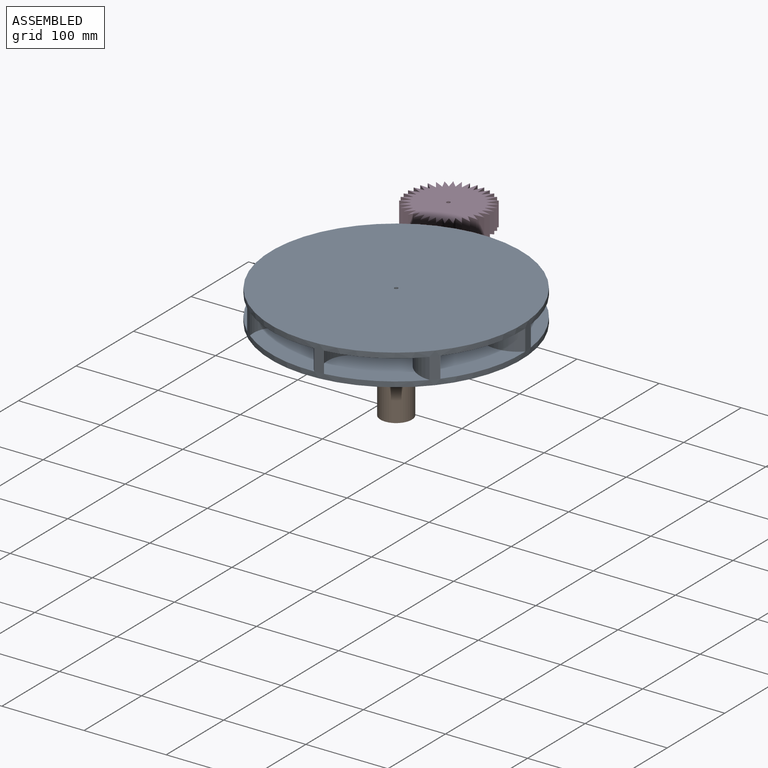
[diagram: assembled view]
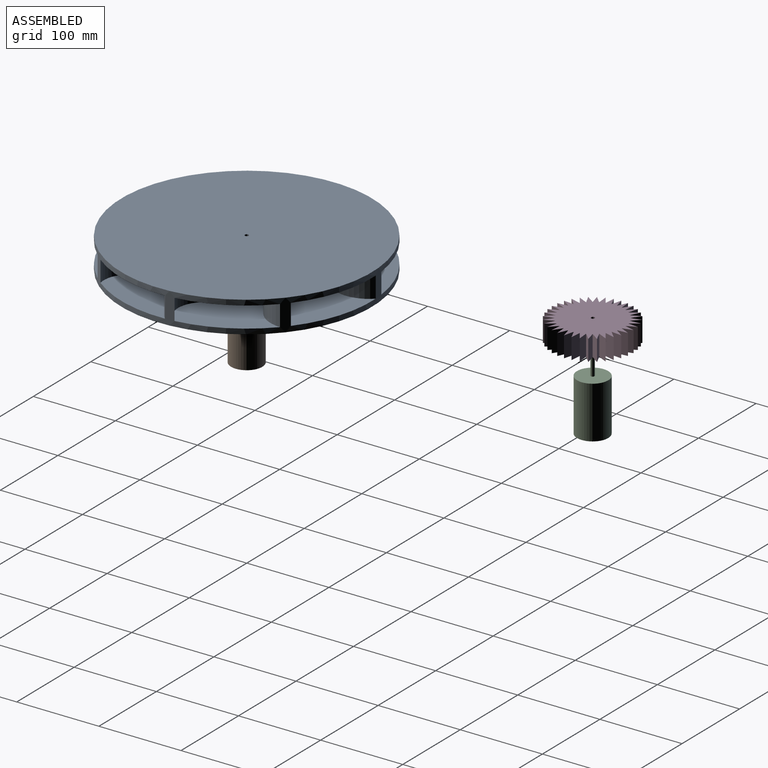
[diagram: assembled view, second angle]
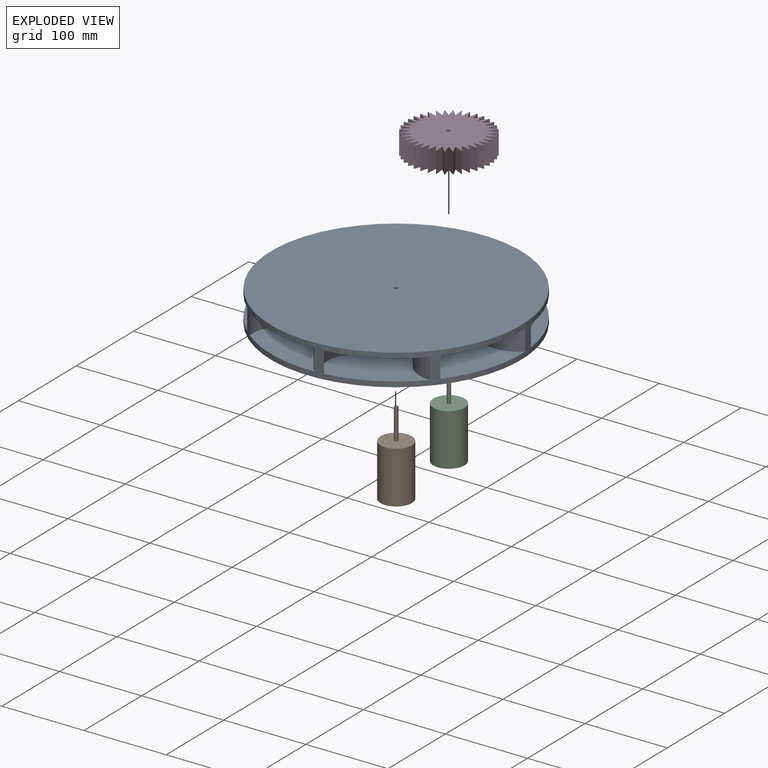
[diagram: exploded view]
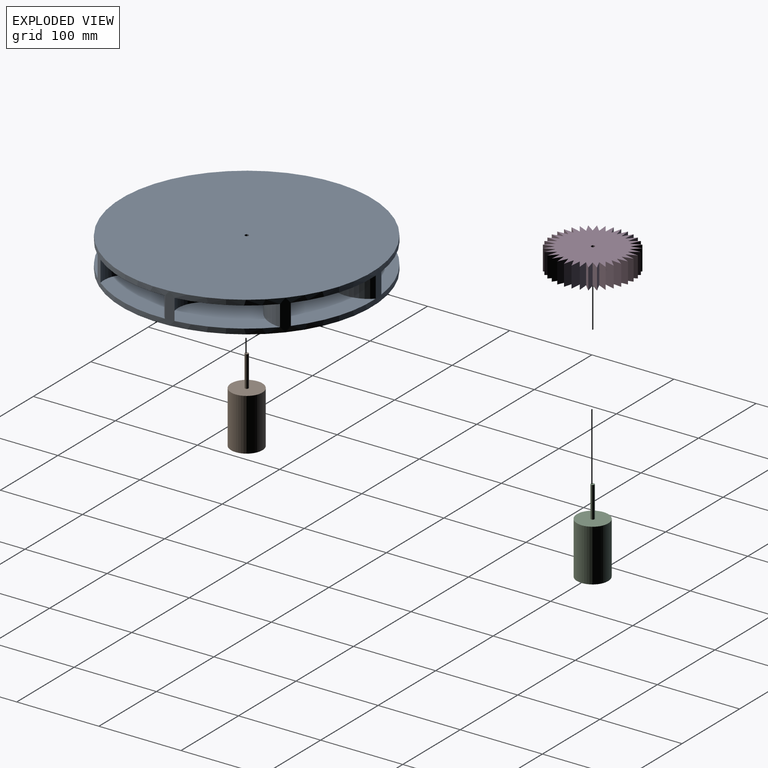
[diagram: exploded view, second angle]
ASSEMBLY  parts=4 mates=2
PART A: 85 faces, bbox 304.8x63.5x304.8 mm
  f0: plane 130.83x98.42mm, normal (0,-1,0), area 7573.2mm2, adj f7,f45,f46,f47,f48,f49
  f1: plane 130.83x110.76mm, normal (0,-1,0), area 7573.2mm2, adj f7,f40,f41,f42,f43,f44
  f2: plane 130.83x98.42mm, normal (0,-1,0), area 7573.2mm2, adj f7,f35,f36,f37,f38,f39
  f3: plane 130.83x110.76mm, normal (0,-1,0), area 7573.2mm2, adj f7,f30,f31,f32,f33,f34
  f4: plane 130.83x98.42mm, normal (0,-1,0), area 7573.2mm2, adj f7,f25,f26,f27,f28,f29
  f5: plane 130.83x110.76mm, normal (0,-1,0), area 7573.2mm2, adj f7,f20,f21,f22,f23,f24
  f6: plane 130.83x98.42mm, normal (0,-1,0), area 7573.2mm2, adj f7,f15,f16,f17,f18,f19
  f7: cylinder r=152.4mm len=304.8mm, axis (0,1,0), area 14432.5mm2, adj f0,f1,f2,f3,f4,f5,f6,f8
  f8: plane 130.83x110.76mm, normal (0,-1,0), area 7573.2mm2, adj f7,f10,f11,f12,f13,f14
  f9: plane 304.8x304.8mm, normal (0,1,0), area 71998.1mm2, adj f7,f50,f51,f52,f53,f54,f55,f56
  f10: cylinder r=32.42mm len=51.32mm, axis (0,1,0), area 1504.1mm2, adj f7,f8,f11,f75
  f11: plane 76.2x25.4mm, normal (1,0,0), area 1935.5mm2, adj f8,f10,f12,f75
  f12: cylinder r=25.4mm len=25.4mm, axis (0,1,0), area 220.5mm2, adj f8,f11,f13,f75
  f13: plane 53.88x53.88mm, normal (-0.71,0,-0.71), area 1935.5mm2, adj f8,f12,f14,f75
  f14: cylinder r=40.23mm len=36.29mm, axis (0,1,0), area 1413.6mm2, adj f7,f8,f13,f75
  f15: cylinder r=32.42mm len=36.55mm, axis (0,1,0), area 1504.1mm2, adj f6,f7,f16,f76
  f16: plane 53.88x53.88mm, normal (0.71,0,0.71), area 1935.5mm2, adj f6,f15,f17,f76
  f17: cylinder r=25.4mm len=25.4mm, axis (0,1,0), area 220.5mm2, adj f6,f16,f18,f76
  f18: plane 76.2x25.4mm, normal (0,0,-1), area 1935.5mm2, adj f6,f17,f19,f76
  f19: cylinder r=40.23mm len=51.32mm, axis (0,1,0), area 1413.6mm2, adj f6,f7,f18,f76
  f20: cylinder r=32.42mm len=51.32mm, axis (0,1,0), area 1504.1mm2, adj f5,f7,f21,f77
  f21: plane 76.2x25.4mm, normal (0,0,1), area 1935.5mm2, adj f5,f20,f22,f77
  f22: cylinder r=25.4mm len=25.4mm, axis (0,1,0), area 220.5mm2, adj f5,f21,f23,f77
  f23: plane 53.88x53.88mm, normal (0.71,0,-0.71), area 1935.5mm2, adj f5,f22,f24,f77
  f24: cylinder r=40.23mm len=36.29mm, axis (0,1,0), area 1413.6mm2, adj f5,f7,f23,f77
  f25: cylinder r=32.42mm len=36.55mm, axis (0,1,0), area 1504.1mm2, adj f4,f7,f26,f78
  f26: plane 53.88x53.88mm, normal (-0.71,0,0.71), area 1935.5mm2, adj f4,f25,f27,f78
  f27: cylinder r=25.4mm len=25.4mm, axis (0,1,0), area 220.5mm2, adj f4,f26,f28,f78
  f28: plane 76.2x25.4mm, normal (1,0,0), area 1935.5mm2, adj f4,f27,f29,f78
  f29: cylinder r=40.23mm len=51.32mm, axis (0,1,0), area 1413.6mm2, adj f4,f7,f28,f78
  f30: cylinder r=32.42mm len=51.32mm, axis (0,1,0), area 1504.1mm2, adj f3,f7,f31,f79
  f31: plane 76.2x25.4mm, normal (-1,0,0), area 1935.5mm2, adj f3,f30,f32,f79
  f32: cylinder r=25.4mm len=25.4mm, axis (0,1,0), area 220.5mm2, adj f3,f31,f33,f79
  f33: plane 53.88x53.88mm, normal (0.71,0,0.71), area 1935.5mm2, adj f3,f32,f34,f79
  f34: cylinder r=40.23mm len=36.29mm, axis (0,1,0), area 1413.6mm2, adj f3,f7,f33,f79
  f35: cylinder r=32.42mm len=36.55mm, axis (0,1,0), area 1504.1mm2, adj f2,f7,f36,f80
  f36: plane 53.88x53.88mm, normal (-0.71,0,-0.71), area 1935.5mm2, adj f2,f35,f37,f80
  f37: cylinder r=25.4mm len=25.4mm, axis (0,1,0), area 220.5mm2, adj f2,f36,f38,f80
  f38: plane 76.2x25.4mm, normal (0,0,1), area 1935.5mm2, adj f2,f37,f39,f80
  f39: cylinder r=40.23mm len=51.32mm, axis (0,1,0), area 1413.6mm2, adj f2,f7,f38,f80
  f40: cylinder r=32.42mm len=51.32mm, axis (0,1,0), area 1504.1mm2, adj f1,f7,f41,f81
  f41: plane 76.2x25.4mm, normal (0,0,-1), area 1935.5mm2, adj f1,f40,f42,f81
  f42: cylinder r=25.4mm len=25.4mm, axis (0,1,0), area 220.5mm2, adj f1,f41,f43,f81
  f43: plane 53.88x53.88mm, normal (-0.71,0,0.71), area 1935.5mm2, adj f1,f42,f44,f81
  f44: cylinder r=40.23mm len=36.29mm, axis (0,1,0), area 1413.6mm2, adj f1,f7,f43,f81
  f45: cylinder r=32.42mm len=36.55mm, axis (0,1,0), area 1504.1mm2, adj f0,f7,f46,f82
  f46: plane 53.88x53.88mm, normal (0.71,0,-0.71), area 1935.5mm2, adj f0,f45,f47,f82
  f47: cylinder r=25.4mm len=25.4mm, axis (0,1,0), area 220.5mm2, adj f0,f46,f48,f82
  f48: plane 76.2x25.4mm, normal (-1,0,0), area 1935.5mm2, adj f0,f47,f49,f82
  f49: cylinder r=40.23mm len=51.32mm, axis (0,1,0), area 1413.6mm2, adj f0,f7,f48,f82
  f50: plane 25.4x12.27mm, normal (-0.97,0,0.26), area 322.6mm2, adj f9,f51,f73,f74
  f51: plane 25.4x12.27mm, normal (0.97,0,0.26), area 322.6mm2, adj f9,f50,f52,f74
  f52: plane 25.4x8.98mm, normal (-0.71,0,0.71), area 322.6mm2, adj f9,f51,f53,f74
  f53: plane 25.4x12.27mm, normal (0.97,0,-0.26), area 322.6mm2, adj f9,f52,f54,f74
  f54: plane 25.4x12.27mm, normal (-0.26,0,0.97), area 322.6mm2, adj f9,f53,f55,f74
  f55: plane 25.4x8.98mm, normal (0.71,0,-0.71), area 322.6mm2, adj f9,f54,f56,f74
  f56: plane 25.4x12.27mm, normal (0.26,0,0.97), area 322.6mm2, adj f9,f55,f57,f74
  f57: plane 25.4x12.27mm, normal (0.26,0,-0.97), area 322.6mm2, adj f9,f56,f58,f74
  f58: plane 25.4x8.98mm, normal (0.71,0,0.71), area 322.6mm2, adj f9,f57,f59,f74
  f59: plane 25.4x12.27mm, normal (-0.26,0,-0.97), area 322.6mm2, adj f9,f58,f60,f74
  f60: plane 25.4x12.27mm, normal (0.97,0,0.26), area 322.6mm2, adj f9,f59,f61,f74
  f61: plane 25.4x8.98mm, normal (-0.71,0,-0.71), area 322.6mm2, adj f9,f60,f62,f74
  f62: plane 25.4x12.27mm, normal (0.97,0,-0.26), area 322.6mm2, adj f9,f61,f63,f74
  f63: plane 25.4x12.27mm, normal (-0.97,0,-0.26), area 322.6mm2, adj f9,f62,f64,f74
  f64: plane 25.4x8.98mm, normal (0.71,0,-0.71), area 322.6mm2, adj f9,f63,f65,f74
  f65: plane 25.4x12.27mm, normal (-0.97,0,0.26), area 322.6mm2, adj f9,f64,f66,f74
  f66: plane 25.4x12.27mm, normal (0.26,0,-0.97), area 322.6mm2, adj f9,f65,f67,f74
  f67: plane 25.4x8.98mm, normal (-0.71,0,0.71), area 322.6mm2, adj f9,f66,f68,f74
  f68: plane 25.4x12.27mm, normal (-0.26,0,-0.97), area 322.6mm2, adj f9,f67,f69,f74
  f69: plane 25.4x12.27mm, normal (-0.26,0,0.97), area 322.6mm2, adj f9,f68,f70,f74
  f70: plane 25.4x8.98mm, normal (-0.71,0,-0.71), area 322.6mm2, adj f9,f69,f71,f74
  f71: plane 25.4x12.27mm, normal (0.26,0,0.97), area 322.6mm2, adj f9,f70,f72,f74
  f72: plane 25.4x12.27mm, normal (-0.97,0,-0.26), area 322.6mm2, adj f9,f71,f73,f74
  f73: plane 25.4x8.98mm, normal (0.71,0,0.71), area 322.6mm2, adj f9,f50,f72,f74
  f74: plane 49.07x49.07mm, normal (0,1,0), area 951.8mm2, adj f50,f51,f52,f53,f54,f55,f56,f57
  f75: plane 130.83x110.76mm, normal (0,1,0), area 7573.2mm2, adj f7,f10,f11,f12,f13,f14
  f76: plane 130.83x98.42mm, normal (0,1,0), area 7573.2mm2, adj f7,f15,f16,f17,f18,f19
  f77: plane 130.83x110.76mm, normal (0,1,0), area 7573.2mm2, adj f7,f20,f21,f22,f23,f24
  f78: plane 130.83x98.42mm, normal (0,1,0), area 7573.2mm2, adj f7,f25,f26,f27,f28,f29
  f79: plane 130.83x110.76mm, normal (0,1,0), area 7573.2mm2, adj f7,f30,f31,f32,f33,f34
  f80: plane 130.83x98.42mm, normal (0,1,0), area 7573.2mm2, adj f7,f35,f36,f37,f38,f39
  f81: plane 130.83x110.76mm, normal (0,1,0), area 7573.2mm2, adj f7,f40,f41,f42,f43,f44
  f82: plane 130.83x98.42mm, normal (0,1,0), area 7573.2mm2, adj f7,f45,f46,f47,f48,f49
  f83: plane 304.8x304.8mm, normal (0,-1,0), area 72950mm2, adj f7,f84
  f84: cylinder r=2.25mm len=63.5mm, axis (0,1,0), area 897.7mm2, adj f74,f83
PART B: 46 faces, bbox 38.1x38.1x101.6 mm
  f0: plane 38.1x38.1mm, normal (0,0,-1), area 1081.1mm2, adj f1,f5,f6,f7,f8,f9,f10,f11
  f1: cylinder r=19.05mm len=63.5mm, axis (0,0,-1), area 7600.6mm2, adj f0,f2
  f2: plane 38.1x38.1mm, normal (0,0,1), area 1124.2mm2, adj f1,f3
  f3: cylinder r=2.25mm len=38.1mm, axis (0,0,-1), area 538.6mm2, adj f2,f4
  f4: plane 4.5x4.5mm, normal (0,0,1), area 15.9mm2, adj f3
  f5: plane 1.27x1.25mm, normal (0,1,0), area 1.6mm2, adj f0,f6,f13,f14
  f6: plane 6.43x2.29mm, normal (0.94,0.33,0), area 8.7mm2, adj f0,f5,f7,f14
  f7: extruded ~2.21x1.27mm, area 2.9mm2, adj f0,f6,f8,f14
  f8: extruded ~2.17x1.27mm, area 2.9mm2, adj f0,f7,f9,f14
  f9: plane 6.47x2.3mm, normal (-0.94,0.33,0), area 8.7mm2, adj f0,f8,f10,f14
  f10: plane 1.27x1.23mm, normal (0,1,0), area 1.6mm2, adj f0,f9,f11,f14
  f11: plane 10.01x3.59mm, normal (0.94,-0.34,0), area 13.5mm2, adj f0,f10,f12,f14
  f12: plane 1.27x1.15mm, normal (0,-1,0), area 1.5mm2, adj f0,f11,f13,f14
  f13: plane 10.01x3.6mm, normal (-0.94,-0.34,0), area 13.5mm2, adj f0,f5,f12,f14
  f14: plane 10.01x8.34mm, normal (0,0,-1), area 23.2mm2, adj f5,f6,f7,f8,f9,f10,f11,f12
  f15: plane 6.58x1.27mm, normal (0,-1,0), area 8.4mm2, adj f0,f16,f34,f35
  f16: plane 1.27x1.05mm, normal (-1,0,0), area 1.3mm2, adj f0,f15,f17,f35
  f17: plane 5.15x1.27mm, normal (0,1,0), area 6.5mm2, adj f0,f16,f18,f35
  f18: plane 1.27x0.05mm, normal (-1,0,0), area 0.1mm2, adj f0,f17,f19,f35
  f19: plane 2.19x2.14mm, normal (-0.7,-0.71,0), area 3.9mm2, adj f0,f18,f20,f35
  f20: extruded ~2.35x2mm, area 3.9mm2, adj f0,f19,f21,f35
  f21: extruded ~1.88x1.27mm, area 2.5mm2, adj f0,f20,f22,f35
  f22: extruded ~1.94x1.27mm, area 2.7mm2, adj f0,f21,f23,f35
  f23: extruded ~2.21x1.27mm, area 3mm2, adj f0,f22,f24,f35
  f24: extruded ~3.01x1.27mm, area 4.2mm2, adj f0,f23,f25,f35
  f25: plane 1.27x0.77mm, normal (0.79,-0.61,0), area 1.2mm2, adj f0,f24,f26,f35
  f26: extruded ~1.27x1.24mm, area 1.8mm2, adj f0,f25,f27,f35
  f27: extruded ~1.27x1.18mm, area 1.5mm2, adj f0,f26,f28,f35
  f28: extruded ~1.35x1.27mm, area 1.9mm2, adj f0,f27,f29,f35
  f29: extruded ~1.27x1.27mm, area 1.8mm2, adj f0,f28,f30,f35
  f30: extruded ~1.27x1.06mm, area 1.4mm2, adj f0,f29,f31,f35
  f31: extruded ~1.27x1.01mm, area 1.5mm2, adj f0,f30,f32,f35
  f32: extruded ~1.74x1.59mm, area 3mm2, adj f0,f31,f33,f35
  f33: plane 2.65x2.63mm, normal (0.71,0.71,0), area 4.7mm2, adj f0,f32,f34,f35
  f34: plane 1.27x0.98mm, normal (1,0,0), area 1.2mm2, adj f0,f15,f33,f35
  f35: plane 10.15x6.58mm, normal (0,0,-1), area 22.1mm2, adj f15,f16,f17,f18,f19,f20,f21,f22
  f36: plane 1.27x1.11mm, normal (0,-1,0), area 1.4mm2, adj f0,f37,f44,f45
  f37: plane 10.01x1.27mm, normal (-1,0,0), area 12.7mm2, adj f0,f36,f38,f45
  f38: plane 1.27x0.96mm, normal (0,1,0), area 1.2mm2, adj f0,f37,f39,f45
  f39: plane 2.65x2.05mm, normal (0.61,0.79,0), area 4.3mm2, adj f0,f38,f40,f45
  f40: plane 1.27x0.78mm, normal (0.79,-0.61,0), area 1.3mm2, adj f0,f39,f41,f45
  f41: extruded ~1.63x1.33mm, area 2.7mm2, adj f0,f40,f42,f45
  f42: extruded ~1.27x0.32mm, area 0.6mm2, adj f0,f41,f43,f45
  f43: extruded ~1.68x1.27mm, area 2.1mm2, adj f0,f42,f44,f45
  f44: plane 7.13x1.27mm, normal (1,0,0), area 9.1mm2, adj f0,f36,f43,f45
  f45: plane 10.01x3.6mm, normal (0,0,-1), area 13.7mm2, adj f36,f37,f38,f39,f40,f41,f42,f43
PART C: same geometry as B
PART D: 75 faces, bbox 25.4x99.7x99.7 mm
  f0: plane 25.4x8.98mm, normal (0,-0.71,0.71), area 322.6mm2, adj f1,f71,f72,f73
  f1: plane 25.4x12.27mm, normal (0,0.26,-0.97), area 322.6mm2, adj f0,f2,f72,f73
  f2: plane 25.4x10.4mm, normal (0,-0.82,0.57), area 322.6mm2, adj f1,f3,f72,f73
  f3: plane 25.4x11.51mm, normal (0,0.42,-0.91), area 322.6mm2, adj f2,f4,f72,f73
  f4: plane 25.4x11.51mm, normal (0,-0.91,0.42), area 322.6mm2, adj f3,f5,f72,f73
  f5: plane 25.4x10.4mm, normal (0,0.57,-0.82), area 322.6mm2, adj f4,f6,f72,f73
  f6: plane 25.4x12.27mm, normal (0,-0.97,0.26), area 322.6mm2, adj f5,f7,f72,f73
  f7: plane 25.4x8.98mm, normal (0,0.71,-0.71), area 322.6mm2, adj f6,f8,f72,f73
  f8: plane 25.4x12.65mm, normal (0,-1,0.09), area 322.6mm2, adj f7,f9,f72,f73
  f9: plane 25.4x10.4mm, normal (0,0.82,-0.57), area 322.6mm2, adj f8,f10,f72,f73
  f10: plane 25.4x12.65mm, normal (0,-1,-0.09), area 322.6mm2, adj f9,f11,f72,f73
  f11: plane 25.4x11.51mm, normal (0,0.91,-0.42), area 322.6mm2, adj f10,f12,f72,f73
  f12: plane 25.4x12.27mm, normal (0,-0.97,-0.26), area 322.6mm2, adj f11,f13,f72,f73
  f13: plane 25.4x12.27mm, normal (0,0.97,-0.26), area 322.6mm2, adj f12,f14,f72,f73
  f14: plane 25.4x11.51mm, normal (0,-0.91,-0.42), area 322.6mm2, adj f13,f15,f72,f73
  f15: plane 25.4x12.65mm, normal (0,1,-0.09), area 322.6mm2, adj f14,f16,f72,f73
  f16: plane 25.4x10.4mm, normal (0,-0.82,-0.57), area 322.6mm2, adj f15,f17,f72,f73
  f17: plane 25.4x12.65mm, normal (0,1,0.09), area 322.6mm2, adj f16,f18,f72,f73
  f18: plane 25.4x8.98mm, normal (0,-0.71,-0.71), area 322.6mm2, adj f17,f19,f72,f73
  f19: plane 25.4x12.27mm, normal (0,0.97,0.26), area 322.6mm2, adj f18,f20,f72,f73
  f20: plane 25.4x10.4mm, normal (0,-0.57,-0.82), area 322.6mm2, adj f19,f21,f72,f73
  f21: plane 25.4x11.51mm, normal (0,0.91,0.42), area 322.6mm2, adj f20,f22,f72,f73
  f22: plane 25.4x11.51mm, normal (0,-0.42,-0.91), area 322.6mm2, adj f21,f23,f72,f73
  f23: plane 25.4x10.4mm, normal (0,0.82,0.57), area 322.6mm2, adj f22,f24,f72,f73
  f24: plane 25.4x12.27mm, normal (0,-0.26,-0.97), area 322.6mm2, adj f23,f25,f72,f73
  f25: plane 25.4x8.98mm, normal (0,0.71,0.71), area 322.6mm2, adj f24,f26,f72,f73
  f26: plane 25.4x12.65mm, normal (0,-0.09,-1), area 322.6mm2, adj f25,f27,f72,f73
  f27: plane 25.4x10.4mm, normal (0,0.57,0.82), area 322.6mm2, adj f26,f28,f72,f73
  f28: plane 25.4x12.65mm, normal (0,0.09,-1), area 322.6mm2, adj f27,f29,f72,f73
  f29: plane 25.4x11.51mm, normal (0,0.42,0.91), area 322.6mm2, adj f28,f30,f72,f73
  f30: plane 25.4x12.27mm, normal (0,0.26,-0.97), area 322.6mm2, adj f29,f31,f72,f73
  f31: plane 25.4x12.27mm, normal (0,0.26,0.97), area 322.6mm2, adj f30,f32,f72,f73
  f32: plane 25.4x11.51mm, normal (0,0.42,-0.91), area 322.6mm2, adj f31,f33,f72,f73
  f33: plane 25.4x12.65mm, normal (0,0.09,1), area 322.6mm2, adj f32,f34,f72,f73
  f34: plane 25.4x10.4mm, normal (0,0.57,-0.82), area 322.6mm2, adj f33,f35,f72,f73
  f35: plane 25.4x12.65mm, normal (0,-0.09,1), area 322.6mm2, adj f34,f36,f72,f73
  f36: plane 25.4x8.98mm, normal (0,0.71,-0.71), area 322.6mm2, adj f35,f37,f72,f73
  f37: plane 25.4x12.27mm, normal (0,-0.26,0.97), area 322.6mm2, adj f36,f38,f72,f73
  f38: plane 25.4x10.4mm, normal (0,0.82,-0.57), area 322.6mm2, adj f37,f39,f72,f73
  f39: plane 25.4x11.51mm, normal (0,-0.42,0.91), area 322.6mm2, adj f38,f40,f72,f73
  f40: plane 25.4x11.51mm, normal (0,0.91,-0.42), area 322.6mm2, adj f39,f41,f72,f73
  f41: plane 25.4x10.4mm, normal (0,-0.57,0.82), area 322.6mm2, adj f40,f42,f72,f73
  f42: plane 25.4x12.27mm, normal (0,0.97,-0.26), area 322.6mm2, adj f41,f43,f72,f73
  f43: plane 25.4x8.98mm, normal (0,-0.71,0.71), area 322.6mm2, adj f42,f44,f72,f73
  f44: plane 25.4x12.65mm, normal (0,1,-0.09), area 322.6mm2, adj f43,f45,f72,f73
  f45: plane 25.4x10.4mm, normal (0,-0.82,0.57), area 322.6mm2, adj f44,f46,f72,f73
  f46: plane 25.4x12.65mm, normal (0,1,0.09), area 322.6mm2, adj f45,f47,f72,f73
  f47: plane 25.4x11.51mm, normal (0,-0.91,0.42), area 322.6mm2, adj f46,f48,f72,f73
  f48: plane 25.4x12.27mm, normal (0,0.97,0.26), area 322.6mm2, adj f47,f49,f72,f73
  f49: plane 25.4x12.27mm, normal (0,-0.97,0.26), area 322.6mm2, adj f48,f50,f72,f73
  f50: plane 25.4x11.51mm, normal (0,0.91,0.42), area 322.6mm2, adj f49,f51,f72,f73
  f51: plane 25.4x12.65mm, normal (0,-1,0.09), area 322.6mm2, adj f50,f52,f72,f73
  f52: plane 25.4x10.4mm, normal (0,0.82,0.57), area 322.6mm2, adj f51,f53,f72,f73
  f53: plane 25.4x12.65mm, normal (0,-1,-0.09), area 322.6mm2, adj f52,f54,f72,f73
  f54: plane 25.4x8.98mm, normal (0,0.71,0.71), area 322.6mm2, adj f53,f55,f72,f73
  f55: plane 25.4x12.27mm, normal (0,-0.97,-0.26), area 322.6mm2, adj f54,f56,f72,f73
  f56: plane 25.4x10.4mm, normal (0,0.57,0.82), area 322.6mm2, adj f55,f57,f72,f73
  f57: plane 25.4x11.51mm, normal (0,-0.91,-0.42), area 322.6mm2, adj f56,f58,f72,f73
  f58: plane 25.4x11.51mm, normal (0,0.42,0.91), area 322.6mm2, adj f57,f59,f72,f73
  f59: plane 25.4x10.4mm, normal (0,-0.82,-0.57), area 322.6mm2, adj f58,f60,f72,f73
  f60: plane 25.4x12.27mm, normal (0,0.26,0.97), area 322.6mm2, adj f59,f61,f72,f73
  f61: plane 25.4x8.98mm, normal (0,-0.71,-0.71), area 322.6mm2, adj f60,f62,f72,f73
  f62: plane 25.4x12.65mm, normal (0,0.09,1), area 322.6mm2, adj f61,f63,f72,f73
  f63: plane 25.4x10.4mm, normal (0,-0.57,-0.82), area 322.6mm2, adj f62,f64,f72,f73
  f64: plane 25.4x12.65mm, normal (0,-0.09,1), area 322.6mm2, adj f63,f65,f72,f73
  f65: plane 25.4x11.51mm, normal (0,-0.42,-0.91), area 322.6mm2, adj f64,f66,f72,f73
  f66: plane 25.4x12.27mm, normal (0,-0.26,0.97), area 322.6mm2, adj f65,f67,f72,f73
  f67: plane 25.4x12.27mm, normal (0,-0.26,-0.97), area 322.6mm2, adj f66,f68,f72,f73
  f68: plane 25.4x11.51mm, normal (0,-0.42,0.91), area 322.6mm2, adj f67,f69,f72,f73
  f69: plane 25.4x12.65mm, normal (0,-0.09,-1), area 322.6mm2, adj f68,f70,f72,f73
  f70: plane 25.4x10.4mm, normal (0,-0.57,0.82), area 322.6mm2, adj f69,f71,f72,f73
  f71: plane 25.4x12.65mm, normal (0,0.09,-1), area 322.6mm2, adj f0,f70,f72,f73
  f72: plane 99.68x99.68mm, normal (1,0,0), area 5881.5mm2, adj f0,f1,f2,f3,f4,f5,f6,f7
  f73: plane 99.68x99.68mm, normal (-1,0,0), area 5881.5mm2, adj f0,f1,f2,f3,f4,f5,f6,f7
  f74: cylinder r=2.25mm len=25.4mm, axis (1,0,0), area 359.1mm2, adj f72,f73
PLACE A rot(axis=(-0.25,-0.68,0.68),151.8deg) t=(0,0,0)mm
PLACE B t=(0,0,-101.6)mm
PLACE C t=(-154.82,312.79,-155.44)mm
PLACE D rot(axis=(0,-1,0),90deg) t=(-155.4,312.76,-53.84)mm
MATE revolute B.f3 <-> A.f7  axis (0,0,-1) through (0,0,0)mm
MATE revolute D.f73 <-> C.f3  axis (0,0,-1) through (-154.82,312.79,-53.84)mm
